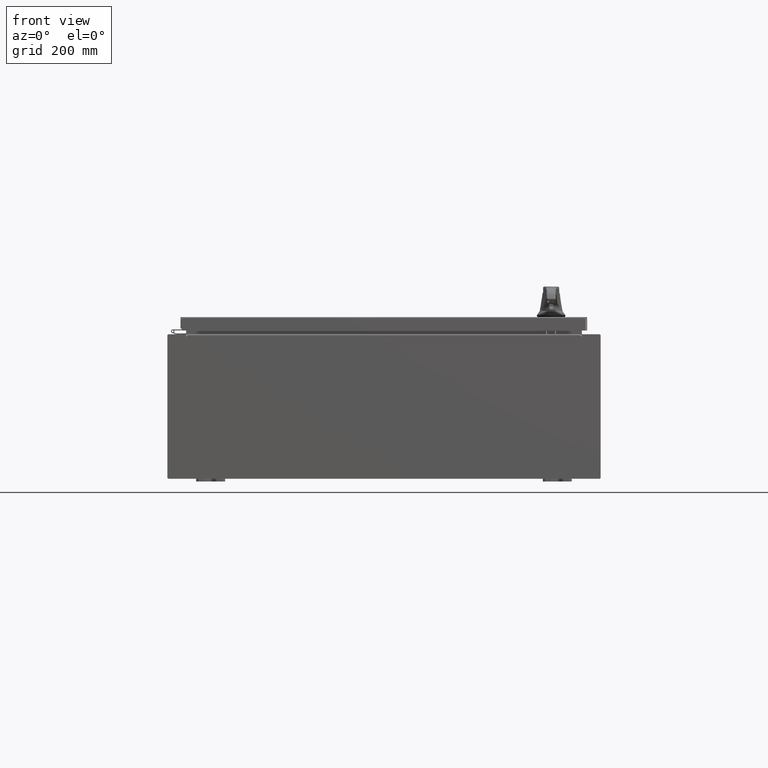
[diagram: clean part render]
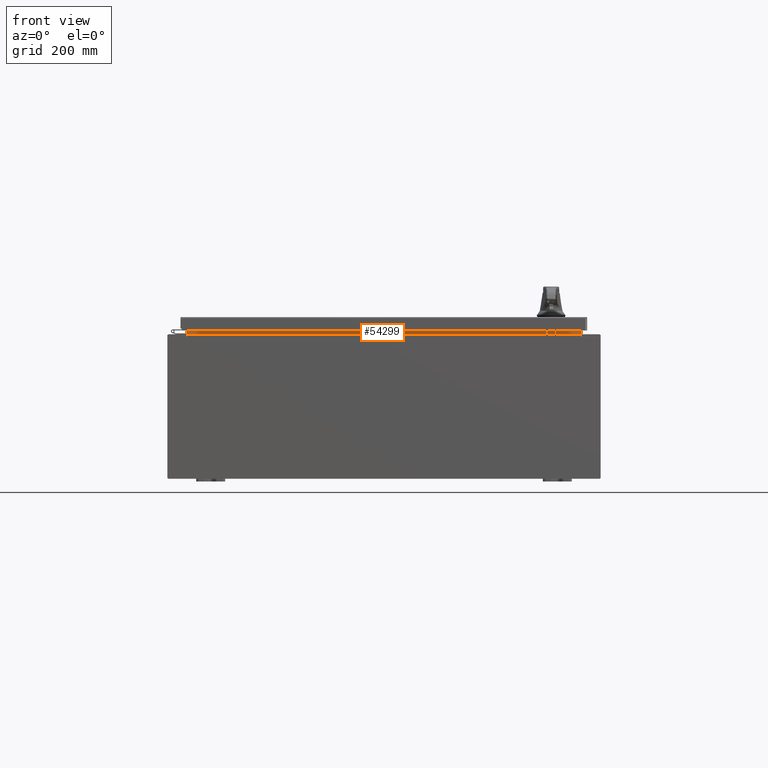
[diagram: same view with one face highlighted and labeled with its STEP entity id]
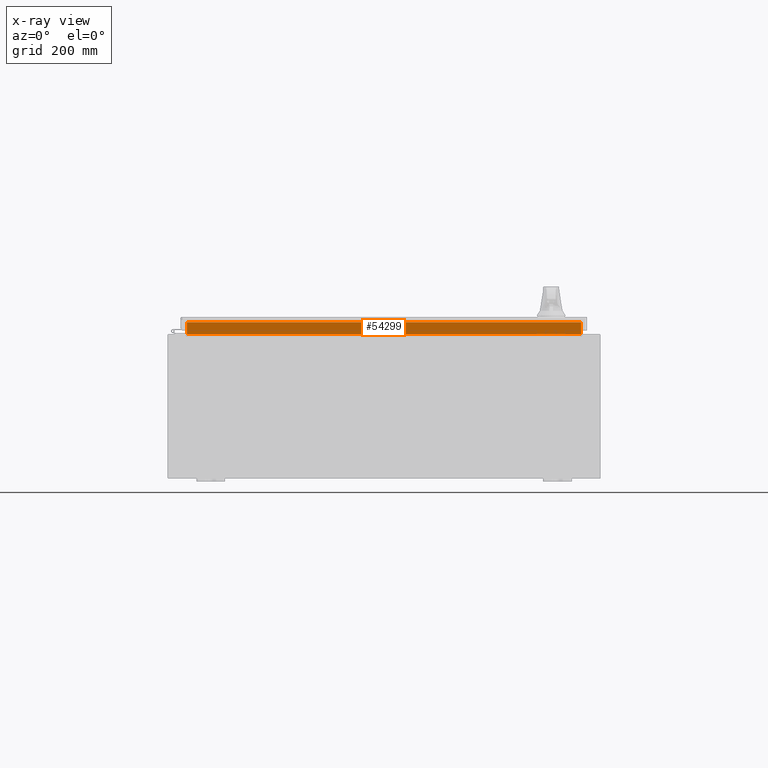
[diagram: x-ray of the same camera — body ghosted, the highlighted face saturated]
A machine part, front view. The second image highlights one B-rep face of the part: STEP entity #54299.
The next image is the same camera in x-ray: the body ghosted, the highlighted face saturated — about 0% of this face is hidden behind the body in this view.
In plain terms, the highlighted planar face has unit normal (0, -1, 0).
Its self-contained STEP definition (entity closure, byte-faithful):
#2705 = LINE ( 'NONE', #27578, #124198 ) ;
#10230 = CARTESIAN_POINT ( 'NONE',  ( -13.63720000000000400, -1.300299999999999800, 5.000000000000004400 ) ) ;
#12622 = PLANE ( 'NONE',  #115022 ) ;
#18064 = VECTOR ( 'NONE', #106186, 39.37007874015748100 ) ;
#20244 = CARTESIAN_POINT ( 'NONE',  ( 13.63719999999999800, -1.300299999999999800, 5.925300000000004500 ) ) ;
#21984 = LINE ( 'NONE', #86047, #123971 ) ;
#23102 = CARTESIAN_POINT ( 'NONE',  ( -13.63720000000000400, -1.300299999999999800, 5.013000000000002600 ) ) ;
#23512 = ORIENTED_EDGE ( 'NONE', *, *, #29641, .F. ) ;
#26865 = VERTEX_POINT ( 'NONE', #34382 ) ;
#27578 = CARTESIAN_POINT ( 'NONE',  ( 13.63719999999999800, -1.300299999999999800, 5.837600000000004600 ) ) ;
#29641 = EDGE_CURVE ( 'NONE', #31834, #35623, #120103, .T. ) ;
#31834 = VERTEX_POINT ( 'NONE', #59309 ) ;
#31861 = DIRECTION ( 'NONE',  ( 0.0000000000000000000, -0.0000000000000000000, 1.000000000000000000 ) ) ;
#34382 = CARTESIAN_POINT ( 'NONE',  ( 13.63719999999999600, -1.300299999999999800, 5.013000000000002600 ) ) ;
#35623 = VERTEX_POINT ( 'NONE', #23102 ) ;
#37200 = DIRECTION ( 'NONE',  ( -1.000000000000000000, -0.0000000000000000000, -0.0000000000000000000 ) ) ;
#38265 = DIRECTION ( 'NONE',  ( 1.000000000000000000, 0.0000000000000000000, -4.006464660875052000E-017 ) ) ;
#52900 = EDGE_CURVE ( 'NONE', #26865, #107782, #84677, .T. ) ;
#54299 = ADVANCED_FACE ( 'NONE', ( #93430 ), #12622, .T. ) ;
#59201 = VECTOR ( 'NONE', #106548, 39.37007874015748100 ) ;
#59309 = CARTESIAN_POINT ( 'NONE',  ( -13.63720000000000400, -1.300299999999999800, 5.837600000000004600 ) ) ;
#67104 = CARTESIAN_POINT ( 'NONE',  ( 13.63719999999999800, -1.300299999999999800, 5.837600000000004600 ) ) ;
#84677 = LINE ( 'NONE', #20244, #59201 ) ;
#86047 = CARTESIAN_POINT ( 'NONE',  ( -13.63720000000000400, -1.300299999999999800, 5.013000000000003500 ) ) ;
#89283 = DIRECTION ( 'NONE',  ( 0.0000000000000000000, 1.000000000000000000, 0.0000000000000000000 ) ) ;
#93430 = FACE_OUTER_BOUND ( 'NONE', #98897, .T. ) ;
#97936 = EDGE_CURVE ( 'NONE', #107782, #31834, #2705, .T. ) ;
#98897 = EDGE_LOOP ( 'NONE', ( #23512, #101523, #112018, #116638 ) ) ;
#101523 = ORIENTED_EDGE ( 'NONE', *, *, #97936, .F. ) ;
#106186 = DIRECTION ( 'NONE',  ( -0.0000000000000000000, -0.0000000000000000000, -1.000000000000000000 ) ) ;
#106548 = DIRECTION ( 'NONE',  ( -0.0000000000000000000, -0.0000000000000000000, 1.000000000000000000 ) ) ;
#107782 = VERTEX_POINT ( 'NONE', #67104 ) ;
#112018 = ORIENTED_EDGE ( 'NONE', *, *, #52900, .F. ) ;
#115022 = AXIS2_PLACEMENT_3D ( 'NONE', #117857, #89283, #31861 ) ;
#116638 = ORIENTED_EDGE ( 'NONE', *, *, #117281, .F. ) ;
#117281 = EDGE_CURVE ( 'NONE', #35623, #26865, #21984, .T. ) ;
#117857 = CARTESIAN_POINT ( 'NONE',  ( 0.0000000000000000000, -1.300299999999999800, 0.0000000000000000000 ) ) ;
#120103 = LINE ( 'NONE', #10230, #18064 ) ;
#123971 = VECTOR ( 'NONE', #38265, 39.37007874015748100 ) ;
#124198 = VECTOR ( 'NONE', #37200, 39.37007874015748100 ) ;